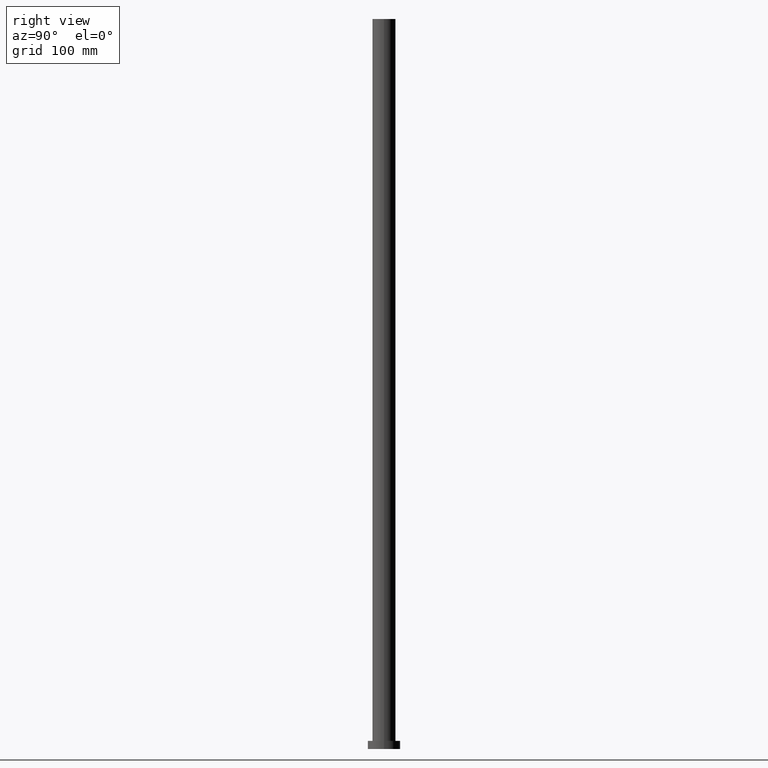
[diagram: clean part render]
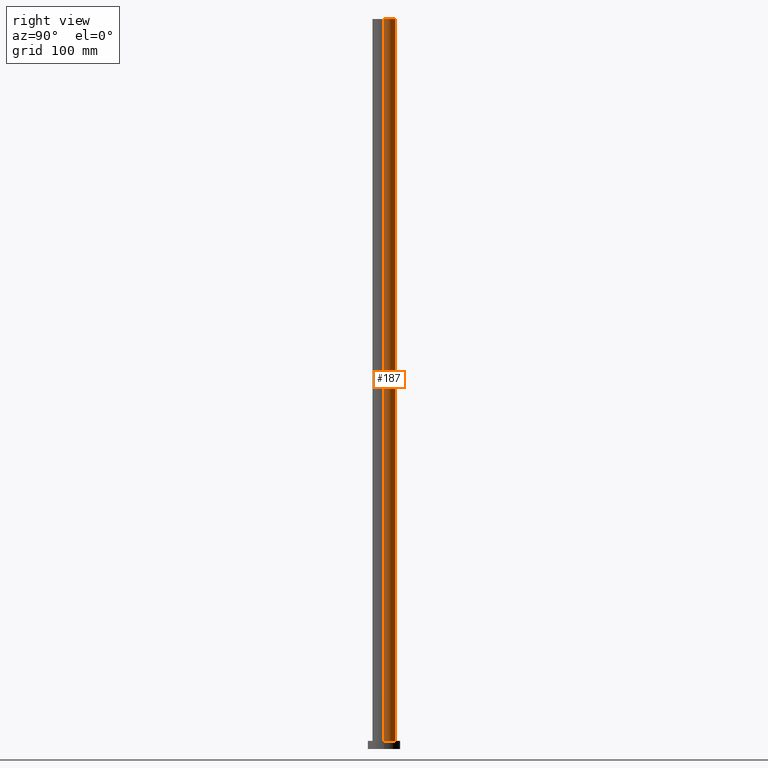
[diagram: same view with one face highlighted and labeled with its STEP entity id]
A machine part, right view. The second image highlights one B-rep face of the part: STEP entity #187.
In plain terms, the highlighted cylindrical surface (edge-blend (fillet) strip) has radius 10 mm, axis along (-0, -0, -1).
Its self-contained STEP definition (entity closure, byte-faithful):
#9 = DIRECTION ( 'NONE',  ( -0.000000000000000000, -0.000000000000000000, -1.000000000000000000 ) ) ;
#22 = ORIENTED_EDGE ( 'NONE', *, *, #51, .F. ) ;
#27 = VERTEX_POINT ( 'NONE', #35 ) ;
#29 = AXIS2_PLACEMENT_3D ( 'NONE', #96, #127, #111 ) ;
#35 = CARTESIAN_POINT ( 'NONE',  ( 10.00000000000000000, 1.224646799147353256E-15, 7.000000000000000000 ) ) ;
#45 = CIRCLE ( 'NONE', #226, 10.00000000000000000 ) ;
#48 = DIRECTION ( 'NONE',  ( -1.000000000000000000, 0.000000000000000000, 0.000000000000000000 ) ) ;
#51 = EDGE_CURVE ( 'NONE', #165, #218, #112, .T. ) ;
#57 = VECTOR ( 'NONE', #9, 1000.000000000000000 ) ;
#72 = DIRECTION ( 'NONE',  ( -0.000000000000000000, -0.000000000000000000, -1.000000000000000000 ) ) ;
#74 = CIRCLE ( 'NONE', #29, 10.00000000000000000 ) ;
#75 = CARTESIAN_POINT ( 'NONE',  ( -10.00000000000000000, 0.000000000000000000, 630.0000000000000000 ) ) ;
#84 = ORIENTED_EDGE ( 'NONE', *, *, #98, .T. ) ;
#94 = AXIS2_PLACEMENT_3D ( 'NONE', #108, #155, #48 ) ;
#96 = CARTESIAN_POINT ( 'NONE',  ( 0.000000000000000000, 0.000000000000000000, 630.0000000000000000 ) ) ;
#98 = EDGE_CURVE ( 'NONE', #235, #27, #229, .T. ) ;
#102 = CARTESIAN_POINT ( 'NONE',  ( 0.000000000000000000, 0.000000000000000000, 7.000000000000000000 ) ) ;
#108 = CARTESIAN_POINT ( 'NONE',  ( 0.000000000000000000, 0.000000000000000000, 630.0000000000000000 ) ) ;
#111 = DIRECTION ( 'NONE',  ( 1.000000000000000000, 0.000000000000000000, 0.000000000000000000 ) ) ;
#112 = LINE ( 'NONE', #228, #57 ) ;
#114 = CARTESIAN_POINT ( 'NONE',  ( 10.00000000000000000, 1.224646799147353256E-15, 630.0000000000000000 ) ) ;
#127 = DIRECTION ( 'NONE',  ( 0.000000000000000000, 0.000000000000000000, 1.000000000000000000 ) ) ;
#132 = EDGE_CURVE ( 'NONE', #235, #165, #74, .T. ) ;
#133 = CYLINDRICAL_SURFACE ( 'NONE', #94, 10.00000000000000000 ) ;
#155 = DIRECTION ( 'NONE',  ( -0.000000000000000000, -0.000000000000000000, -1.000000000000000000 ) ) ;
#159 = CARTESIAN_POINT ( 'NONE',  ( 10.00000000000000000, 1.224646799147353256E-15, 630.0000000000000000 ) ) ;
#162 = EDGE_LOOP ( 'NONE', ( #189, #84, #249, #22 ) ) ;
#165 = VERTEX_POINT ( 'NONE', #75 ) ;
#174 = EDGE_CURVE ( 'NONE', #27, #218, #45, .T. ) ;
#187 = ADVANCED_FACE ( 'NONE', ( #220 ), #133, .T. ) ;
#189 = ORIENTED_EDGE ( 'NONE', *, *, #132, .F. ) ;
#218 = VERTEX_POINT ( 'NONE', #231 ) ;
#220 = FACE_OUTER_BOUND ( 'NONE', #162, .T. ) ;
#226 = AXIS2_PLACEMENT_3D ( 'NONE', #102, #255, #237 ) ;
#228 = CARTESIAN_POINT ( 'NONE',  ( -10.00000000000000000, 0.000000000000000000, 630.0000000000000000 ) ) ;
#229 = LINE ( 'NONE', #114, #230 ) ;
#230 = VECTOR ( 'NONE', #72, 1000.000000000000000 ) ;
#231 = CARTESIAN_POINT ( 'NONE',  ( -10.00000000000000000, 0.000000000000000000, 7.000000000000000000 ) ) ;
#235 = VERTEX_POINT ( 'NONE', #159 ) ;
#237 = DIRECTION ( 'NONE',  ( 1.000000000000000000, 0.000000000000000000, 0.000000000000000000 ) ) ;
#249 = ORIENTED_EDGE ( 'NONE', *, *, #174, .T. ) ;
#255 = DIRECTION ( 'NONE',  ( 0.000000000000000000, 0.000000000000000000, 1.000000000000000000 ) ) ;